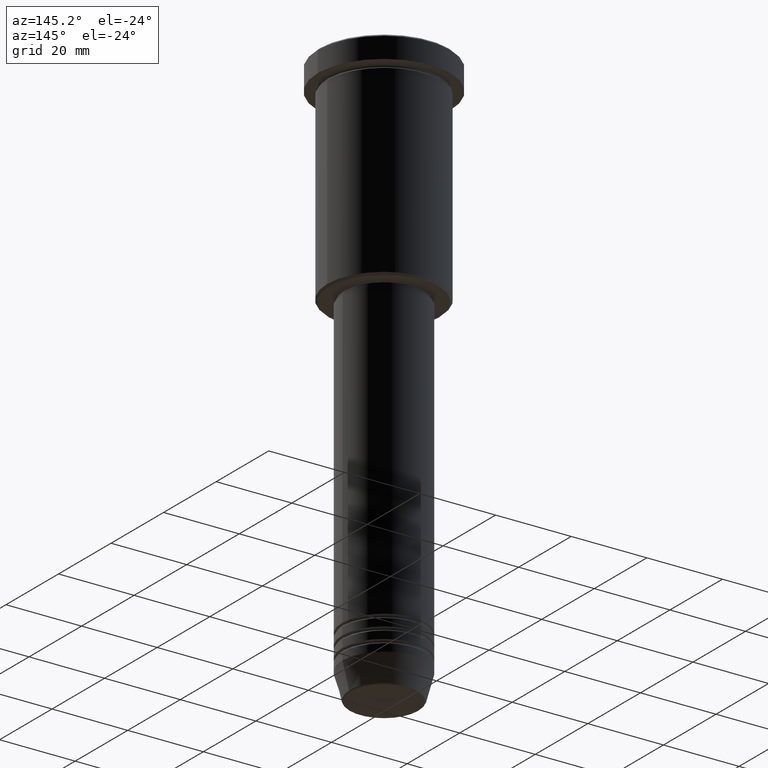
[diagram: clean part render]
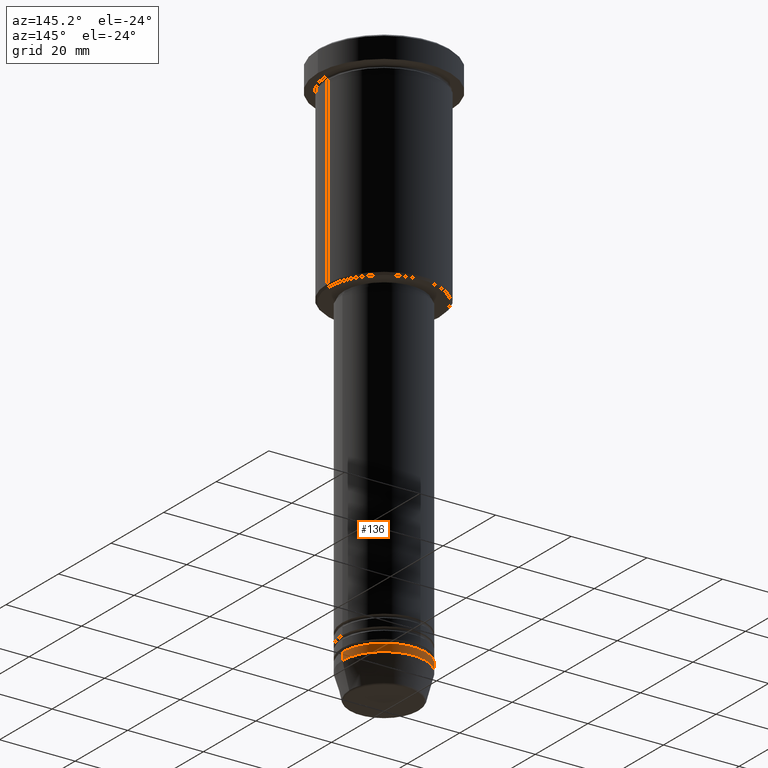
[diagram: same view with one face highlighted and labeled with its STEP entity id]
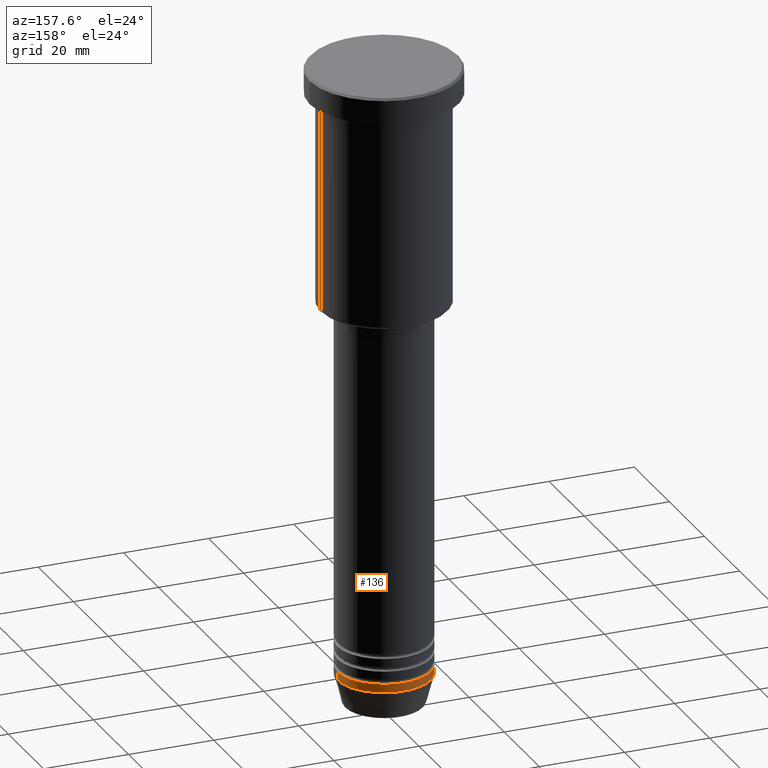
[diagram: same view with one face highlighted and labeled with its STEP entity id]
A machine part, auxiliary view. The second image highlights one B-rep face of the part: STEP entity #136.
A second angle (auxiliary view) of the same face is appended — the face is thin or edge-on in the first view.
In plain terms, the highlighted cylindrical surface (partial cylindrical patch) has radius 11 mm, axis along (-0, -0, 1).
Its self-contained STEP definition (entity closure, byte-faithful):
#27 = EDGE_LOOP ( 'NONE', ( #915, #291, #740, #964 ) ) ;
#52 = LINE ( 'NONE', #329, #923 ) ;
#59 = EDGE_CURVE ( 'NONE', #674, #933, #52, .T. ) ;
#78 = EDGE_CURVE ( 'NONE', #81, #933, #844, .T. ) ;
#81 = VERTEX_POINT ( 'NONE', #773 ) ;
#136 = ADVANCED_FACE ( 'NONE', ( #1051 ), #656, .T. ) ;
#166 = CARTESIAN_POINT ( 'NONE',  ( -11.00000000000000000, 1.347111479062088405E-15, -144.0000000000000284 ) ) ;
#210 = VERTEX_POINT ( 'NONE', #1073 ) ;
#257 = AXIS2_PLACEMENT_3D ( 'NONE', #566, #952, #944 ) ;
#278 = CIRCLE ( 'NONE', #1129, 11.00000000000000000 ) ;
#291 = ORIENTED_EDGE ( 'NONE', *, *, #59, .T. ) ;
#329 = CARTESIAN_POINT ( 'NONE',  ( -11.00000000000000000, 1.347111479062088405E-15, 0.000000000000000000 ) ) ;
#331 = DIRECTION ( 'NONE',  ( 1.000000000000000000, 0.000000000000000000, 0.000000000000000000 ) ) ;
#425 = VECTOR ( 'NONE', #856, 1000.000000000000000 ) ;
#513 = CARTESIAN_POINT ( 'NONE',  ( 0.000000000000000000, 0.000000000000000000, -144.0000000000000284 ) ) ;
#566 = CARTESIAN_POINT ( 'NONE',  ( 0.000000000000000000, 0.000000000000000000, 0.000000000000000000 ) ) ;
#631 = EDGE_CURVE ( 'NONE', #210, #81, #771, .T. ) ;
#656 = CYLINDRICAL_SURFACE ( 'NONE', #257, 11.00000000000000000 ) ;
#659 = CARTESIAN_POINT ( 'NONE',  ( -11.00000000000000000, 1.347111479062088405E-15, -142.0000000000000284 ) ) ;
#674 = VERTEX_POINT ( 'NONE', #166 ) ;
#702 = EDGE_CURVE ( 'NONE', #210, #674, #278, .T. ) ;
#707 = DIRECTION ( 'NONE',  ( -0.000000000000000000, -0.000000000000000000, 1.000000000000000000 ) ) ;
#740 = ORIENTED_EDGE ( 'NONE', *, *, #78, .F. ) ;
#761 = DIRECTION ( 'NONE',  ( 1.000000000000000000, 0.000000000000000000, 0.000000000000000000 ) ) ;
#771 = LINE ( 'NONE', #951, #425 ) ;
#773 = CARTESIAN_POINT ( 'NONE',  ( 11.00000000000000000, 0.000000000000000000, -142.0000000000000284 ) ) ;
#844 = CIRCLE ( 'NONE', #1053, 11.00000000000000000 ) ;
#856 = DIRECTION ( 'NONE',  ( -0.000000000000000000, -0.000000000000000000, 1.000000000000000000 ) ) ;
#915 = ORIENTED_EDGE ( 'NONE', *, *, #702, .T. ) ;
#923 = VECTOR ( 'NONE', #1134, 1000.000000000000000 ) ;
#933 = VERTEX_POINT ( 'NONE', #659 ) ;
#944 = DIRECTION ( 'NONE',  ( 1.000000000000000000, 0.000000000000000000, 0.000000000000000000 ) ) ;
#951 = CARTESIAN_POINT ( 'NONE',  ( 11.00000000000000000, 0.000000000000000000, 0.000000000000000000 ) ) ;
#952 = DIRECTION ( 'NONE',  ( -0.000000000000000000, -0.000000000000000000, 1.000000000000000000 ) ) ;
#964 = ORIENTED_EDGE ( 'NONE', *, *, #631, .F. ) ;
#1030 = CARTESIAN_POINT ( 'NONE',  ( 0.000000000000000000, 0.000000000000000000, -142.0000000000000284 ) ) ;
#1051 = FACE_OUTER_BOUND ( 'NONE', #27, .T. ) ;
#1053 = AXIS2_PLACEMENT_3D ( 'NONE', #1030, #1122, #761 ) ;
#1073 = CARTESIAN_POINT ( 'NONE',  ( 11.00000000000000000, 0.000000000000000000, -144.0000000000000284 ) ) ;
#1122 = DIRECTION ( 'NONE',  ( -0.000000000000000000, -0.000000000000000000, 1.000000000000000000 ) ) ;
#1129 = AXIS2_PLACEMENT_3D ( 'NONE', #513, #707, #331 ) ;
#1134 = DIRECTION ( 'NONE',  ( -0.000000000000000000, -0.000000000000000000, 1.000000000000000000 ) ) ;